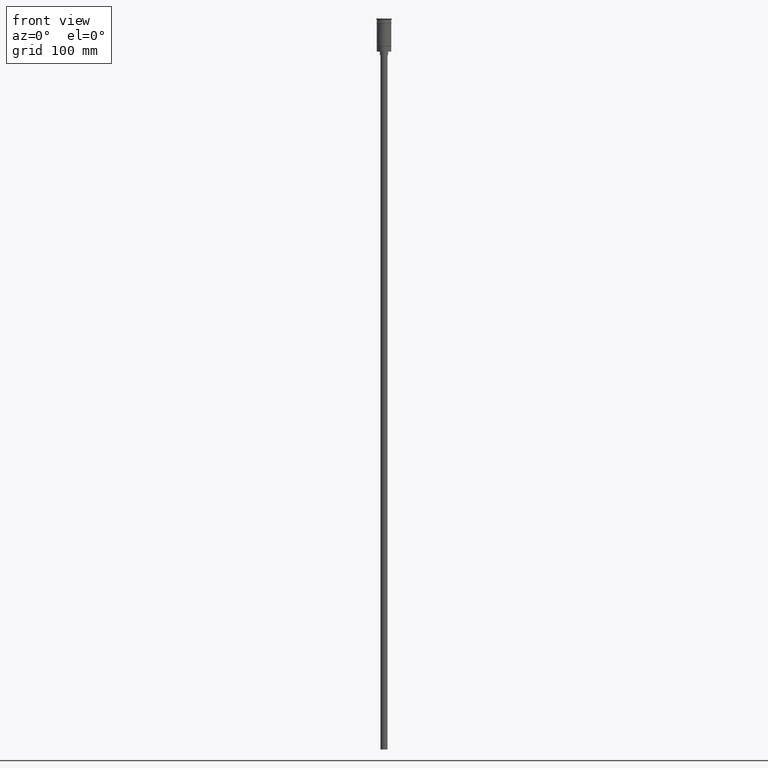
[diagram: clean part render]
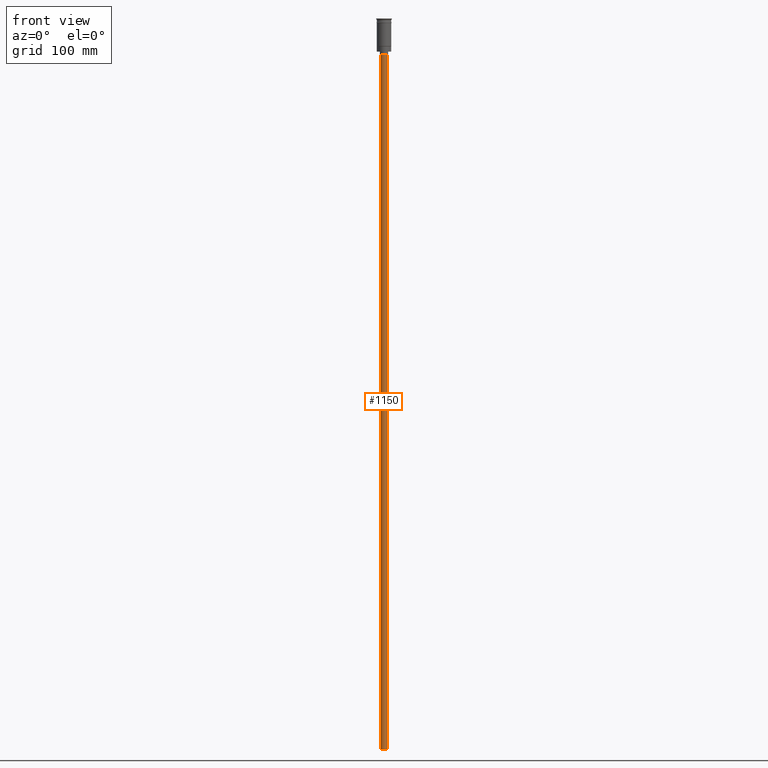
[diagram: same view with one face highlighted and labeled with its STEP entity id]
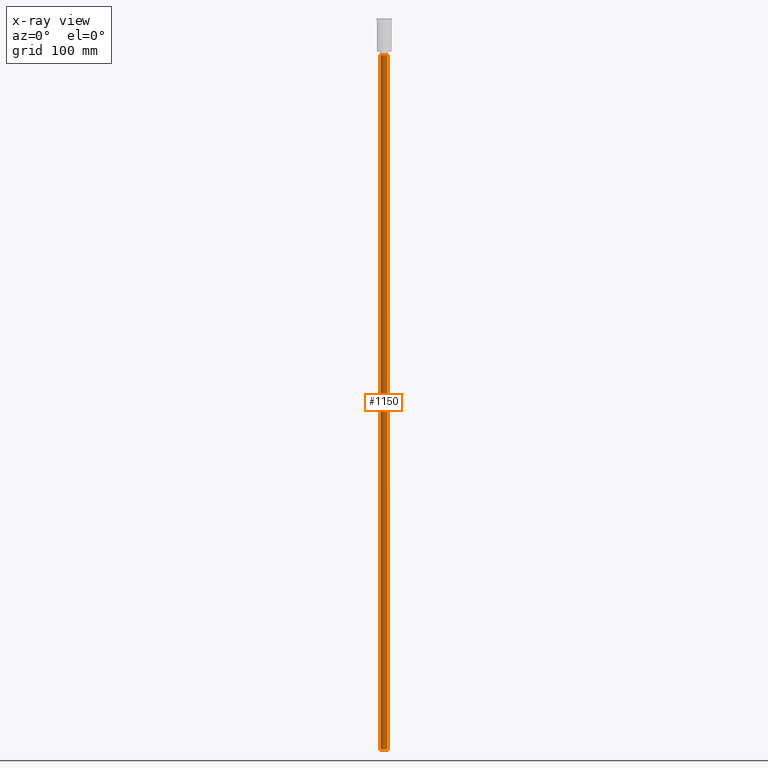
[diagram: x-ray of the same camera — body ghosted, the highlighted face saturated]
A machine part, front view. The second image highlights one B-rep face of the part: STEP entity #1150.
The next image is the same camera in x-ray: the body ghosted, the highlighted face saturated — about 0% of this face is hidden behind the body in this view.
In plain terms, the highlighted cylindrical surface (edge-blend (fillet) strip) has radius 3 mm, axis along (-0, -0, 1).
Its self-contained STEP definition (entity closure, byte-faithful):
#14 = AXIS2_PLACEMENT_3D ( 'NONE', #1393, #154, #642 ) ;
#73 = CYLINDRICAL_SURFACE ( 'NONE', #1175, 3.000000000000000444 ) ;
#124 = DIRECTION ( 'NONE',  ( -0.000000000000000000, -0.000000000000000000, 1.000000000000000000 ) ) ;
#154 = DIRECTION ( 'NONE',  ( 0.000000000000000000, 0.000000000000000000, -1.000000000000000000 ) ) ;
#181 = EDGE_LOOP ( 'NONE', ( #1274, #1321, #455, #1349 ) ) ;
#219 = AXIS2_PLACEMENT_3D ( 'NONE', #537, #1025, #638 ) ;
#370 = CARTESIAN_POINT ( 'NONE',  ( 3.000000000000000444, 0.000000000000000000, -628.5000000000000000 ) ) ;
#381 = VERTEX_POINT ( 'NONE', #1138 ) ;
#435 = FACE_OUTER_BOUND ( 'NONE', #181, .T. ) ;
#455 = ORIENTED_EDGE ( 'NONE', *, *, #920, .T. ) ;
#530 = LINE ( 'NONE', #647, #1292 ) ;
#537 = CARTESIAN_POINT ( 'NONE',  ( 0.000000000000000000, 0.000000000000000000, -628.5000000000000000 ) ) ;
#564 = CARTESIAN_POINT ( 'NONE',  ( 0.000000000000000000, 0.000000000000000000, -628.5000000000000000 ) ) ;
#638 = DIRECTION ( 'NONE',  ( -1.000000000000000000, 0.000000000000000000, 0.000000000000000000 ) ) ;
#642 = DIRECTION ( 'NONE',  ( -1.000000000000000000, 0.000000000000000000, 0.000000000000000000 ) ) ;
#647 = CARTESIAN_POINT ( 'NONE',  ( -3.000000000000000444, 3.673940397442060361E-16, -628.5000000000000000 ) ) ;
#737 = VERTEX_POINT ( 'NONE', #1404 ) ;
#758 = CIRCLE ( 'NONE', #219, 3.000000000000000444 ) ;
#788 = CARTESIAN_POINT ( 'NONE',  ( -3.000000000000000444, 3.673940397442060361E-16, -31.50000000000000000 ) ) ;
#920 = EDGE_CURVE ( 'NONE', #1218, #737, #1450, .T. ) ;
#975 = EDGE_CURVE ( 'NONE', #737, #1300, #1171, .T. ) ;
#1019 = EDGE_CURVE ( 'NONE', #381, #1300, #530, .T. ) ;
#1025 = DIRECTION ( 'NONE',  ( 0.000000000000000000, 0.000000000000000000, -1.000000000000000000 ) ) ;
#1027 = EDGE_CURVE ( 'NONE', #1218, #381, #758, .T. ) ;
#1051 = CARTESIAN_POINT ( 'NONE',  ( 3.000000000000000444, 0.000000000000000000, -628.5000000000000000 ) ) ;
#1053 = DIRECTION ( 'NONE',  ( -0.000000000000000000, -0.000000000000000000, 1.000000000000000000 ) ) ;
#1138 = CARTESIAN_POINT ( 'NONE',  ( -3.000000000000000444, 3.673940397442060361E-16, -628.5000000000000000 ) ) ;
#1144 = DIRECTION ( 'NONE',  ( -0.000000000000000000, -0.000000000000000000, 1.000000000000000000 ) ) ;
#1150 = ADVANCED_FACE ( 'NONE', ( #435 ), #73, .T. ) ;
#1171 = CIRCLE ( 'NONE', #14, 3.000000000000000444 ) ;
#1175 = AXIS2_PLACEMENT_3D ( 'NONE', #564, #1053, #1313 ) ;
#1199 = VECTOR ( 'NONE', #124, 1000.000000000000000 ) ;
#1218 = VERTEX_POINT ( 'NONE', #1051 ) ;
#1274 = ORIENTED_EDGE ( 'NONE', *, *, #1019, .F. ) ;
#1292 = VECTOR ( 'NONE', #1144, 1000.000000000000000 ) ;
#1300 = VERTEX_POINT ( 'NONE', #788 ) ;
#1313 = DIRECTION ( 'NONE',  ( 1.000000000000000000, 0.000000000000000000, 0.000000000000000000 ) ) ;
#1321 = ORIENTED_EDGE ( 'NONE', *, *, #1027, .F. ) ;
#1349 = ORIENTED_EDGE ( 'NONE', *, *, #975, .T. ) ;
#1393 = CARTESIAN_POINT ( 'NONE',  ( 0.000000000000000000, 0.000000000000000000, -31.50000000000000000 ) ) ;
#1404 = CARTESIAN_POINT ( 'NONE',  ( 3.000000000000000444, 0.000000000000000000, -31.50000000000000000 ) ) ;
#1450 = LINE ( 'NONE', #370, #1199 ) ;